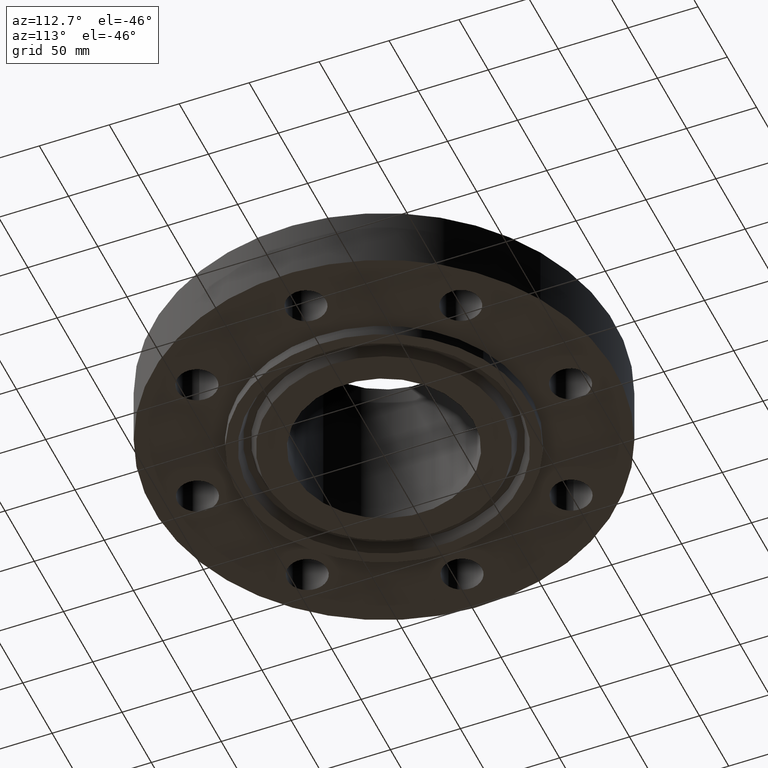
[diagram: clean part render]
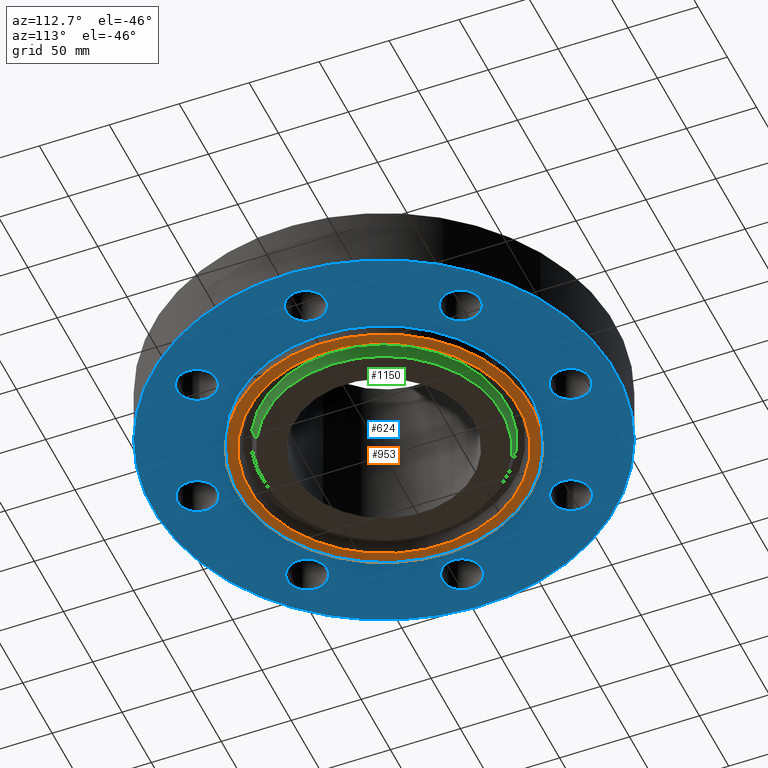
[diagram: same view with three faces highlighted in distinct colors, each labeled with its STEP entity id]
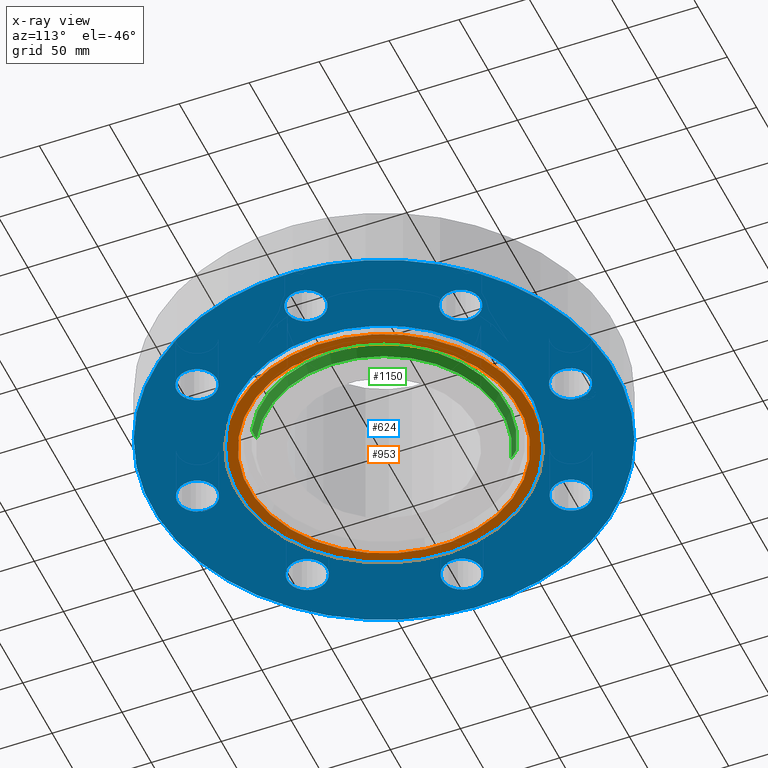
[diagram: x-ray of the same camera — body ghosted, the three highlighted faces saturated]
A machine part, auxiliary view with three faces highlighted in distinct colors.
The next image is the same camera in x-ray (body ghosted, the three faces saturated) — at least one of them is partly hidden behind the body in this view.
Their STEP definitions:

[orange] entity #953 — the highlighted planar face has unit normal (0, 0, -1).
#431=AXIS2_PLACEMENT_3D('Circle Axis2P3D',#429,#430,$) ;
#466=AXIS2_PLACEMENT_3D('Circle Axis2P3D',#464,#465,$) ;
#929=AXIS2_PLACEMENT_3D('Plane Axis2P3D',#926,#927,#928) ;
#937=AXIS2_PLACEMENT_3D('Circle Axis2P3D',#935,#936,$) ;
#946=AXIS2_PLACEMENT_3D('Circle Axis2P3D',#944,#945,$) ;
#429=CARTESIAN_POINT('Axis2P3D Location',(0.,0.,-0.313000000001)) ;
#433=CARTESIAN_POINT('Vertex',(-1.97763034675,-3.62002806781,-0.313000000001)) ;
#435=CARTESIAN_POINT('Vertex',(1.97763034675,3.62002806781,-0.313000000001)) ;
#464=CARTESIAN_POINT('Axis2P3D Location',(0.,0.,-0.313000000001)) ;
#926=CARTESIAN_POINT('Axis2P3D Location',(0.,2.52350000001,-0.313000000001)) ;
#935=CARTESIAN_POINT('Axis2P3D Location',(-2.79741234551E-016,-2.23792987641E-015,-0.313000000001)) ;
#939=CARTESIAN_POINT('Vertex',(1.82037877009,-3.33218098751,-0.313000000001)) ;
#941=CARTESIAN_POINT('Vertex',(-1.82037877009,3.33218098751,-0.313000000001)) ;
#944=CARTESIAN_POINT('Axis2P3D Location',(0.,0.,-0.313000000001)) ;
#430=DIRECTION('Axis2P3D Direction',(0.,0.,-0.0393700787402)) ;
#465=DIRECTION('Axis2P3D Direction',(0.,0.,-0.0393700787402)) ;
#927=DIRECTION('Axis2P3D Direction',(0.,0.,-0.0393700787402)) ;
#928=DIRECTION('Axis2P3D XDirection',(0.0393700787402,0.,0.)) ;
#936=DIRECTION('Axis2P3D Direction',(0.,0.,-0.0393700787402)) ;
#945=DIRECTION('Axis2P3D Direction',(0.,0.,-0.0393700787402)) ;
#932=ORIENTED_EDGE('',*,*,#437,.T.) ;
#933=ORIENTED_EDGE('',*,*,#468,.T.) ;
#950=ORIENTED_EDGE('',*,*,#943,.F.) ;
#951=ORIENTED_EDGE('',*,*,#948,.F.) ;
#952=FACE_BOUND('',#949,.T.) ;
#953=ADVANCED_FACE('PartBody',(#934,#952),#930,.T.) ;
#432=CIRCLE('generated circle',#431,4.12500000002) ;
#467=CIRCLE('generated circle',#466,4.12500000002) ;
#938=CIRCLE('generated circle',#937,3.79700000002) ;
#947=CIRCLE('generated circle',#946,3.79700000002) ;
#437=EDGE_CURVE('',#434,#436,#432,.T.) ;
#468=EDGE_CURVE('',#436,#434,#467,.T.) ;
#943=EDGE_CURVE('',#940,#942,#938,.T.) ;
#948=EDGE_CURVE('',#942,#940,#947,.T.) ;
#931=EDGE_LOOP('',(#932,#933)) ;
#949=EDGE_LOOP('',(#950,#951)) ;
#934=FACE_OUTER_BOUND('',#931,.T.) ;
#930=PLANE('',#929) ;
#434=VERTEX_POINT('',#433) ;
#436=VERTEX_POINT('',#435) ;
#940=VERTEX_POINT('',#939) ;
#942=VERTEX_POINT('',#941) ;

[blue] entity #624 — the highlighted planar face has unit normal (0, 0, -1).
#51=AXIS2_PLACEMENT_3D('Circle Axis2P3D',#49,#50,$) ;
#77=AXIS2_PLACEMENT_3D('Circle Axis2P3D',#75,#76,$) ;
#99=AXIS2_PLACEMENT_3D('Circle Axis2P3D',#97,#98,$) ;
#134=AXIS2_PLACEMENT_3D('Circle Axis2P3D',#132,#133,$) ;
#447=AXIS2_PLACEMENT_3D('Circle Axis2P3D',#445,#446,$) ;
#471=AXIS2_PLACEMENT_3D('Circle Axis2P3D',#469,#470,$) ;
#484=AXIS2_PLACEMENT_3D('Plane Axis2P3D',#481,#482,#483) ;
#500=AXIS2_PLACEMENT_3D('Circle Axis2P3D',#498,#499,$) ;
#509=AXIS2_PLACEMENT_3D('Circle Axis2P3D',#507,#508,$) ;
#518=AXIS2_PLACEMENT_3D('Circle Axis2P3D',#516,#517,$) ;
#527=AXIS2_PLACEMENT_3D('Circle Axis2P3D',#525,#526,$) ;
#536=AXIS2_PLACEMENT_3D('Circle Axis2P3D',#534,#535,$) ;
#545=AXIS2_PLACEMENT_3D('Circle Axis2P3D',#543,#544,$) ;
#554=AXIS2_PLACEMENT_3D('Circle Axis2P3D',#552,#553,$) ;
#563=AXIS2_PLACEMENT_3D('Circle Axis2P3D',#561,#562,$) ;
#572=AXIS2_PLACEMENT_3D('Circle Axis2P3D',#570,#571,$) ;
#581=AXIS2_PLACEMENT_3D('Circle Axis2P3D',#579,#580,$) ;
#590=AXIS2_PLACEMENT_3D('Circle Axis2P3D',#588,#589,$) ;
#599=AXIS2_PLACEMENT_3D('Circle Axis2P3D',#597,#598,$) ;
#608=AXIS2_PLACEMENT_3D('Circle Axis2P3D',#606,#607,$) ;
#617=AXIS2_PLACEMENT_3D('Circle Axis2P3D',#615,#616,$) ;
#44=CARTESIAN_POINT('Vertex',(-0.491446234661,5.51847830164,0.)) ;
#49=CARTESIAN_POINT('Axis2P3D Location',(0.,5.25000000002,0.)) ;
#53=CARTESIAN_POINT('Vertex',(0.491446234661,4.9815216984,0.)) ;
#75=CARTESIAN_POINT('Axis2P3D Location',(0.,5.25000000002,0.)) ;
#97=CARTESIAN_POINT('Axis2P3D Location',(0.,0.,5.59482469102E-016)) ;
#101=CARTESIAN_POINT('Vertex',(-3.11626600094,-5.70428665231,5.59482469102E-016)) ;
#103=CARTESIAN_POINT('Vertex',(3.11626600094,5.70428665231,5.59482469102E-016)) ;
#132=CARTESIAN_POINT('Axis2P3D Location',(0.,0.,5.59482469102E-016)) ;
#442=CARTESIAN_POINT('Vertex',(-1.97763034675,-3.62002806781,5.59482469102E-016)) ;
#445=CARTESIAN_POINT('Axis2P3D Location',(0.,0.,5.59482469102E-016)) ;
#449=CARTESIAN_POINT('Vertex',(1.97763034675,3.62002806781,5.59482469102E-016)) ;
#469=CARTESIAN_POINT('Axis2P3D Location',(0.,0.,5.59482469102E-016)) ;
#481=CARTESIAN_POINT('Axis2P3D Location',(0.,4.12500000002,0.)) ;
#498=CARTESIAN_POINT('Axis2P3D Location',(3.71231060124,3.71231060124,0.)) ;
#502=CARTESIAN_POINT('Vertex',(3.5546484638,4.24965839404,0.)) ;
#504=CARTESIAN_POINT('Vertex',(3.86997273868,3.17496280845,0.)) ;
#507=CARTESIAN_POINT('Axis2P3D Location',(3.71231060124,3.71231060124,0.)) ;
#516=CARTESIAN_POINT('Axis2P3D Location',(5.25000000002,-1.1189649382E-015,0.)) ;
#520=CARTESIAN_POINT('Vertex',(5.51847830164,0.491446234661,0.)) ;
#522=CARTESIAN_POINT('Vertex',(4.9815216984,-0.491446234661,0.)) ;
#525=CARTESIAN_POINT('Axis2P3D Location',(5.25000000002,-1.1189649382E-015,0.)) ;
#534=CARTESIAN_POINT('Axis2P3D Location',(3.71231060124,-3.71231060124,0.)) ;
#538=CARTESIAN_POINT('Vertex',(4.24965839404,-3.5546484638,0.)) ;
#540=CARTESIAN_POINT('Vertex',(3.17496280845,-3.86997273868,0.)) ;
#543=CARTESIAN_POINT('Axis2P3D Location',(3.71231060124,-3.71231060124,0.)) ;
#552=CARTESIAN_POINT('Axis2P3D Location',(4.89547160465E-016,-5.25000000002,0.)) ;
#556=CARTESIAN_POINT('Vertex',(0.491446234661,-5.51847830164,0.)) ;
#558=CARTESIAN_POINT('Vertex',(-0.491446234661,-4.9815216984,0.)) ;
#561=CARTESIAN_POINT('Axis2P3D Location',(4.37095678986E-016,-5.25000000002,0.)) ;
#570=CARTESIAN_POINT('Axis2P3D Location',(-3.71231060124,-3.71231060124,0.)) ;
#574=CARTESIAN_POINT('Vertex',(-3.5546484638,-4.24965839404,0.)) ;
#576=CARTESIAN_POINT('Vertex',(-3.86997273868,-3.17496280845,0.)) ;
#579=CARTESIAN_POINT('Axis2P3D Location',(-3.71231060124,-3.71231060124,0.)) ;
#588=CARTESIAN_POINT('Axis2P3D Location',(-5.25000000002,-5.59482469102E-016,0.)) ;
#592=CARTESIAN_POINT('Vertex',(-5.51847830164,-0.491446234661,0.)) ;
#594=CARTESIAN_POINT('Vertex',(-4.9815216984,0.491446234661,0.)) ;
#597=CARTESIAN_POINT('Axis2P3D Location',(-5.25000000002,-1.1189649382E-015,0.)) ;
#606=CARTESIAN_POINT('Axis2P3D Location',(-3.71231060124,3.71231060124,0.)) ;
#610=CARTESIAN_POINT('Vertex',(-4.24965839404,3.5546484638,0.)) ;
#612=CARTESIAN_POINT('Vertex',(-3.17496280845,3.86997273868,0.)) ;
#615=CARTESIAN_POINT('Axis2P3D Location',(-3.71231060124,3.71231060124,0.)) ;
#50=DIRECTION('Axis2P3D Direction',(0.,-0.,-0.0393700787402)) ;
#76=DIRECTION('Axis2P3D Direction',(0.,-0.,-0.0393700787402)) ;
#98=DIRECTION('Axis2P3D Direction',(0.,0.,-0.0393700787402)) ;
#133=DIRECTION('Axis2P3D Direction',(0.,0.,-0.0393700787402)) ;
#446=DIRECTION('Axis2P3D Direction',(0.,0.,-0.0393700787402)) ;
#470=DIRECTION('Axis2P3D Direction',(0.,0.,-0.0393700787402)) ;
#482=DIRECTION('Axis2P3D Direction',(0.,0.,-0.0393700787402)) ;
#483=DIRECTION('Axis2P3D XDirection',(0.0393700787402,0.,0.)) ;
#499=DIRECTION('Axis2P3D Direction',(0.,0.,-0.0393700787402)) ;
#508=DIRECTION('Axis2P3D Direction',(0.,0.,-0.0393700787402)) ;
#517=DIRECTION('Axis2P3D Direction',(0.,0.,-0.0393700787402)) ;
#526=DIRECTION('Axis2P3D Direction',(0.,0.,-0.0393700787402)) ;
#535=DIRECTION('Axis2P3D Direction',(0.,0.,-0.0393700787402)) ;
#544=DIRECTION('Axis2P3D Direction',(0.,0.,-0.0393700787402)) ;
#553=DIRECTION('Axis2P3D Direction',(0.,0.,-0.0393700787402)) ;
#562=DIRECTION('Axis2P3D Direction',(0.,0.,-0.0393700787402)) ;
#571=DIRECTION('Axis2P3D Direction',(0.,0.,-0.0393700787402)) ;
#580=DIRECTION('Axis2P3D Direction',(0.,0.,-0.0393700787402)) ;
#589=DIRECTION('Axis2P3D Direction',(0.,0.,-0.0393700787402)) ;
#598=DIRECTION('Axis2P3D Direction',(0.,0.,-0.0393700787402)) ;
#607=DIRECTION('Axis2P3D Direction',(0.,0.,-0.0393700787402)) ;
#616=DIRECTION('Axis2P3D Direction',(0.,0.,-0.0393700787402)) ;
#487=ORIENTED_EDGE('',*,*,#105,.T.) ;
#488=ORIENTED_EDGE('',*,*,#136,.T.) ;
#491=ORIENTED_EDGE('',*,*,#79,.F.) ;
#492=ORIENTED_EDGE('',*,*,#55,.F.) ;
#495=ORIENTED_EDGE('',*,*,#473,.F.) ;
#496=ORIENTED_EDGE('',*,*,#451,.F.) ;
#513=ORIENTED_EDGE('',*,*,#506,.F.) ;
#514=ORIENTED_EDGE('',*,*,#511,.F.) ;
#531=ORIENTED_EDGE('',*,*,#524,.F.) ;
#532=ORIENTED_EDGE('',*,*,#529,.F.) ;
#549=ORIENTED_EDGE('',*,*,#542,.F.) ;
#550=ORIENTED_EDGE('',*,*,#547,.F.) ;
#567=ORIENTED_EDGE('',*,*,#560,.F.) ;
#568=ORIENTED_EDGE('',*,*,#565,.F.) ;
#585=ORIENTED_EDGE('',*,*,#578,.F.) ;
#586=ORIENTED_EDGE('',*,*,#583,.F.) ;
#603=ORIENTED_EDGE('',*,*,#596,.F.) ;
#604=ORIENTED_EDGE('',*,*,#601,.F.) ;
#621=ORIENTED_EDGE('',*,*,#614,.F.) ;
#622=ORIENTED_EDGE('',*,*,#619,.F.) ;
#493=FACE_BOUND('',#490,.T.) ;
#497=FACE_BOUND('',#494,.T.) ;
#515=FACE_BOUND('',#512,.T.) ;
#533=FACE_BOUND('',#530,.T.) ;
#551=FACE_BOUND('',#548,.T.) ;
#569=FACE_BOUND('',#566,.T.) ;
#587=FACE_BOUND('',#584,.T.) ;
#605=FACE_BOUND('',#602,.T.) ;
#623=FACE_BOUND('',#620,.T.) ;
#624=ADVANCED_FACE('PartBody',(#489,#493,#497,#515,#533,#551,#569,#587,#605,#623),#485,.T.) ;
#52=CIRCLE('generated circle',#51,0.560000000002) ;
#78=CIRCLE('generated circle',#77,0.560000000002) ;
#100=CIRCLE('generated circle',#99,6.50000000003) ;
#135=CIRCLE('generated circle',#134,6.50000000003) ;
#448=CIRCLE('generated circle',#447,4.12500000002) ;
#472=CIRCLE('generated circle',#471,4.12500000002) ;
#501=CIRCLE('generated circle',#500,0.560000000002) ;
#510=CIRCLE('generated circle',#509,0.560000000002) ;
#519=CIRCLE('generated circle',#518,0.560000000002) ;
#528=CIRCLE('generated circle',#527,0.560000000002) ;
#537=CIRCLE('generated circle',#536,0.560000000002) ;
#546=CIRCLE('generated circle',#545,0.560000000002) ;
#555=CIRCLE('generated circle',#554,0.560000000002) ;
#564=CIRCLE('generated circle',#563,0.560000000002) ;
#573=CIRCLE('generated circle',#572,0.560000000002) ;
#582=CIRCLE('generated circle',#581,0.560000000002) ;
#591=CIRCLE('generated circle',#590,0.560000000002) ;
#600=CIRCLE('generated circle',#599,0.560000000002) ;
#609=CIRCLE('generated circle',#608,0.560000000002) ;
#618=CIRCLE('generated circle',#617,0.560000000002) ;
#55=EDGE_CURVE('',#45,#54,#52,.T.) ;
#79=EDGE_CURVE('',#54,#45,#78,.T.) ;
#105=EDGE_CURVE('',#102,#104,#100,.T.) ;
#136=EDGE_CURVE('',#104,#102,#135,.T.) ;
#451=EDGE_CURVE('',#443,#450,#448,.T.) ;
#473=EDGE_CURVE('',#450,#443,#472,.T.) ;
#506=EDGE_CURVE('',#503,#505,#501,.T.) ;
#511=EDGE_CURVE('',#505,#503,#510,.T.) ;
#524=EDGE_CURVE('',#521,#523,#519,.T.) ;
#529=EDGE_CURVE('',#523,#521,#528,.T.) ;
#542=EDGE_CURVE('',#539,#541,#537,.T.) ;
#547=EDGE_CURVE('',#541,#539,#546,.T.) ;
#560=EDGE_CURVE('',#557,#559,#555,.T.) ;
#565=EDGE_CURVE('',#559,#557,#564,.T.) ;
#578=EDGE_CURVE('',#575,#577,#573,.T.) ;
#583=EDGE_CURVE('',#577,#575,#582,.T.) ;
#596=EDGE_CURVE('',#593,#595,#591,.T.) ;
#601=EDGE_CURVE('',#595,#593,#600,.T.) ;
#614=EDGE_CURVE('',#611,#613,#609,.T.) ;
#619=EDGE_CURVE('',#613,#611,#618,.T.) ;
#486=EDGE_LOOP('',(#487,#488)) ;
#490=EDGE_LOOP('',(#491,#492)) ;
#494=EDGE_LOOP('',(#495,#496)) ;
#512=EDGE_LOOP('',(#513,#514)) ;
#530=EDGE_LOOP('',(#531,#532)) ;
#548=EDGE_LOOP('',(#549,#550)) ;
#566=EDGE_LOOP('',(#567,#568)) ;
#584=EDGE_LOOP('',(#585,#586)) ;
#602=EDGE_LOOP('',(#603,#604)) ;
#620=EDGE_LOOP('',(#621,#622)) ;
#489=FACE_OUTER_BOUND('',#486,.T.) ;
#485=PLANE('',#484) ;
#45=VERTEX_POINT('',#44) ;
#54=VERTEX_POINT('',#53) ;
#102=VERTEX_POINT('',#101) ;
#104=VERTEX_POINT('',#103) ;
#443=VERTEX_POINT('',#442) ;
#450=VERTEX_POINT('',#449) ;
#503=VERTEX_POINT('',#502) ;
#505=VERTEX_POINT('',#504) ;
#521=VERTEX_POINT('',#520) ;
#523=VERTEX_POINT('',#522) ;
#539=VERTEX_POINT('',#538) ;
#541=VERTEX_POINT('',#540) ;
#557=VERTEX_POINT('',#556) ;
#559=VERTEX_POINT('',#558) ;
#575=VERTEX_POINT('',#574) ;
#577=VERTEX_POINT('',#576) ;
#593=VERTEX_POINT('',#592) ;
#595=VERTEX_POINT('',#594) ;
#611=VERTEX_POINT('',#610) ;
#613=VERTEX_POINT('',#612) ;

[green] entity #1150 — the highlighted conical surface has half-angle 23 deg.
#956=AXIS2_PLACEMENT_3D('Circle Axis2P3D',#954,#955,$) ;
#1100=AXIS2_PLACEMENT_3D('Circle Axis2P3D',#1098,#1099,$) ;
#1132=AXIS2_PLACEMENT_3D('Cone Axis2P3D',#1129,#1130,#1131) ;
#954=CARTESIAN_POINT('Axis2P3D Location',(-8.39223703654E-016,5.59482469102E-016,-0.313000000001)) ;
#958=CARTESIAN_POINT('Vertex',(-1.59552819248,2.92059476598,-0.313000000001)) ;
#960=CARTESIAN_POINT('Vertex',(1.59552819248,-2.92059476598,-0.313000000001)) ;
#1095=CARTESIAN_POINT('Vertex',(1.65538131607,-3.03015517383,-0.0188873350169)) ;
#1098=CARTESIAN_POINT('Axis2P3D Location',(0.,0.,-0.0188873350169)) ;
#1102=CARTESIAN_POINT('Vertex',(-1.65538131607,3.03015517383,-0.0188873350169)) ;
#1129=CARTESIAN_POINT('Axis2P3D Location',(0.,0.,-0.373000000001)) ;
#1134=CARTESIAN_POINT('Line Origine',(-1.62545475428,2.97537496991,-0.165943667509)) ;
#1139=CARTESIAN_POINT('Line Origine',(1.62545475428,-2.97537496991,-0.165943667509)) ;
#955=DIRECTION('Axis2P3D Direction',(0.,0.,-0.0393700787402)) ;
#1099=DIRECTION('Axis2P3D Direction',(0.,0.,0.0393700787402)) ;
#1130=DIRECTION('Axis2P3D Direction',(0.,0.,0.0393700787402)) ;
#1131=DIRECTION('Axis2P3D XDirection',(-0.0188750212049,0.0345504945626,0.)) ;
#1135=DIRECTION('Vector Direction',(-0.00737505833565,0.0134999537303,0.0362403485611)) ;
#1140=DIRECTION('Vector Direction',(0.00737505833565,-0.0134999537303,0.0362403485611)) ;
#1136=VECTOR('Line Direction',#1135,0.0393700787402) ;
#1141=VECTOR('Line Direction',#1140,0.0393700787402) ;
#1145=ORIENTED_EDGE('',*,*,#1138,.F.) ;
#1146=ORIENTED_EDGE('',*,*,#1104,.F.) ;
#1147=ORIENTED_EDGE('',*,*,#1143,.T.) ;
#1148=ORIENTED_EDGE('',*,*,#962,.F.) ;
#1150=ADVANCED_FACE('PartBody',(#1149),#1133,.T.) ;
#957=CIRCLE('generated circle',#956,3.32800000001) ;
#1101=CIRCLE('generated circle',#1100,3.45284341943) ;
#1133=CONICAL_SURFACE('Cone',#1132,3.30253151104,0.401425727959) ;
#962=EDGE_CURVE('',#959,#961,#957,.T.) ;
#1104=EDGE_CURVE('',#1096,#1103,#1101,.T.) ;
#1138=EDGE_CURVE('',#1103,#959,#1137,.F.) ;
#1143=EDGE_CURVE('',#1096,#961,#1142,.F.) ;
#1144=EDGE_LOOP('',(#1145,#1146,#1147,#1148)) ;
#1149=FACE_OUTER_BOUND('',#1144,.T.) ;
#1137=LINE('Line',#1134,#1136) ;
#1142=LINE('Line',#1139,#1141) ;
#959=VERTEX_POINT('',#958) ;
#961=VERTEX_POINT('',#960) ;
#1096=VERTEX_POINT('',#1095) ;
#1103=VERTEX_POINT('',#1102) ;